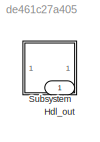
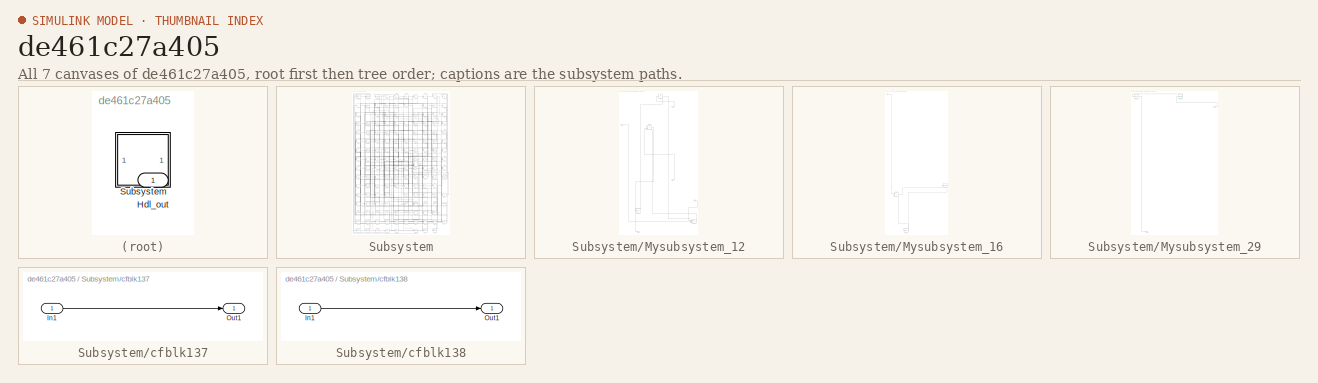
[diagram: thumbnail index - all 7 canvases of the model, root first then tree order]
MODEL slx_de461c27a405
KIND model
CONFIG AbsTol = auto
CONFIG EnableMultiTasking = off
CONFIG FixedStep = auto
CONFIG MaxStep = auto
CONFIG MinStep = auto
CONFIG RelTol = 1e-3
CONFIG SampleTimeConstraint = Unconstrained
CONFIG SolverName = VariableStepAuto
CONFIG StartTime = 0.0
CONFIG StopTime = 10.0
BLOCK [Outport] Hdl_out
  OutDataTypeStr = uint8
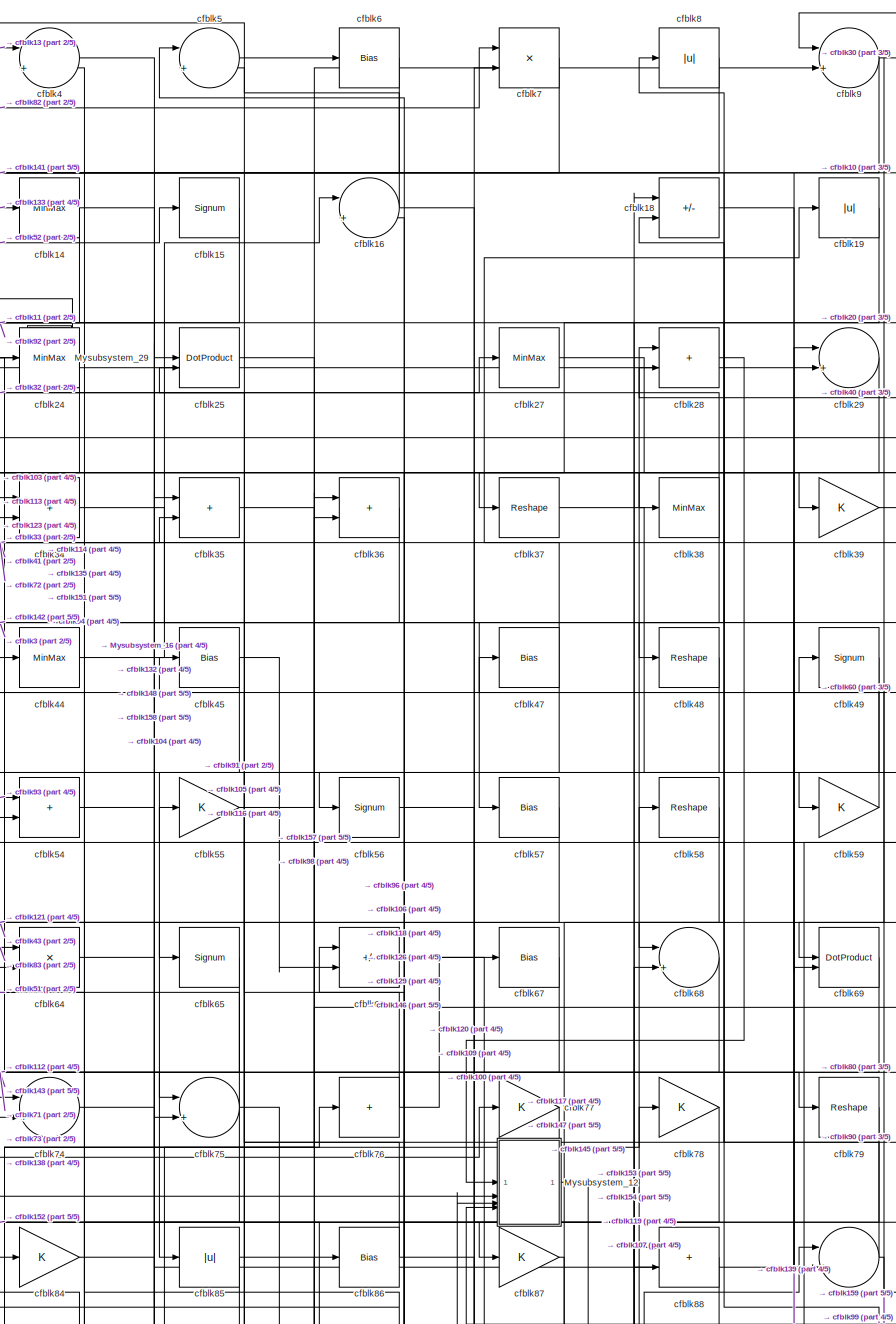
[diagram: Subsystem - part 1/5, top center region]
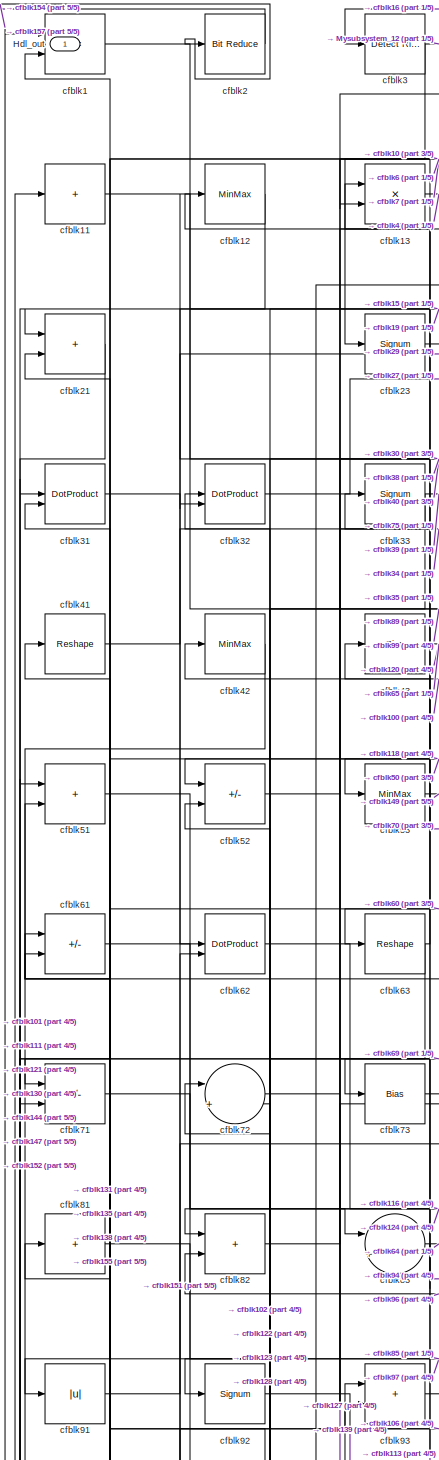
[diagram: Subsystem - part 2/5, top left region]
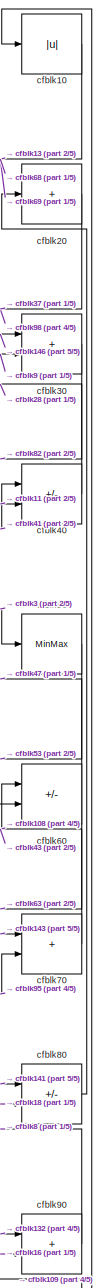
[diagram: Subsystem - part 3/5, top right region]
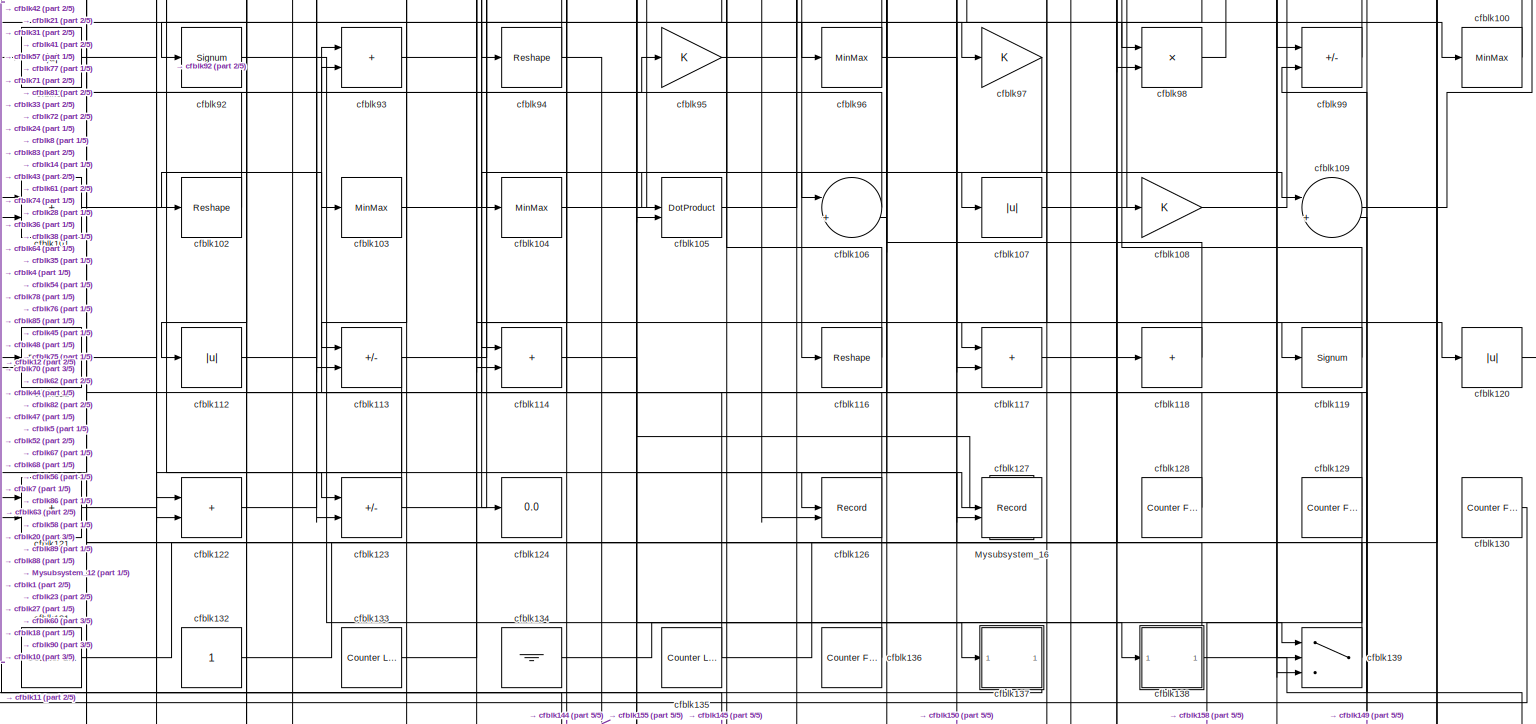
[diagram: Subsystem - part 4/5, full width, bottom band]
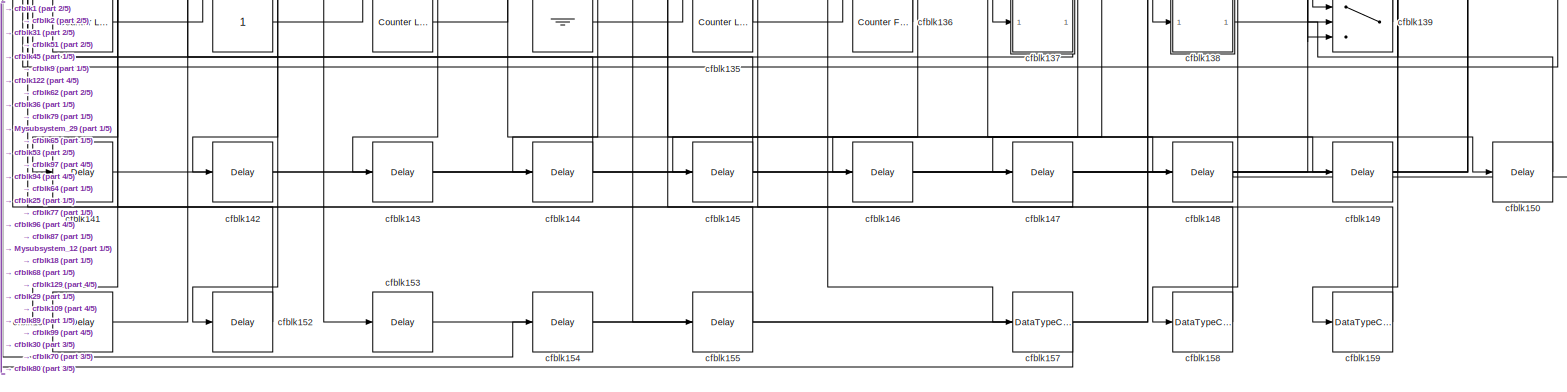
[diagram: Subsystem - part 5/5, full width, bottom band]
BLOCK [SubSystem] Subsystem
BLOCK [Outport] Subsystem/Hdl_out
  OutDataTypeStr = uint8
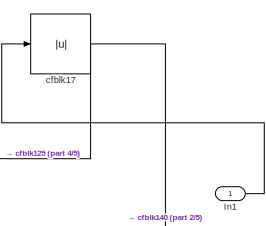
[diagram: Subsystem/Mysubsystem_12 - part 1/5, top center region]
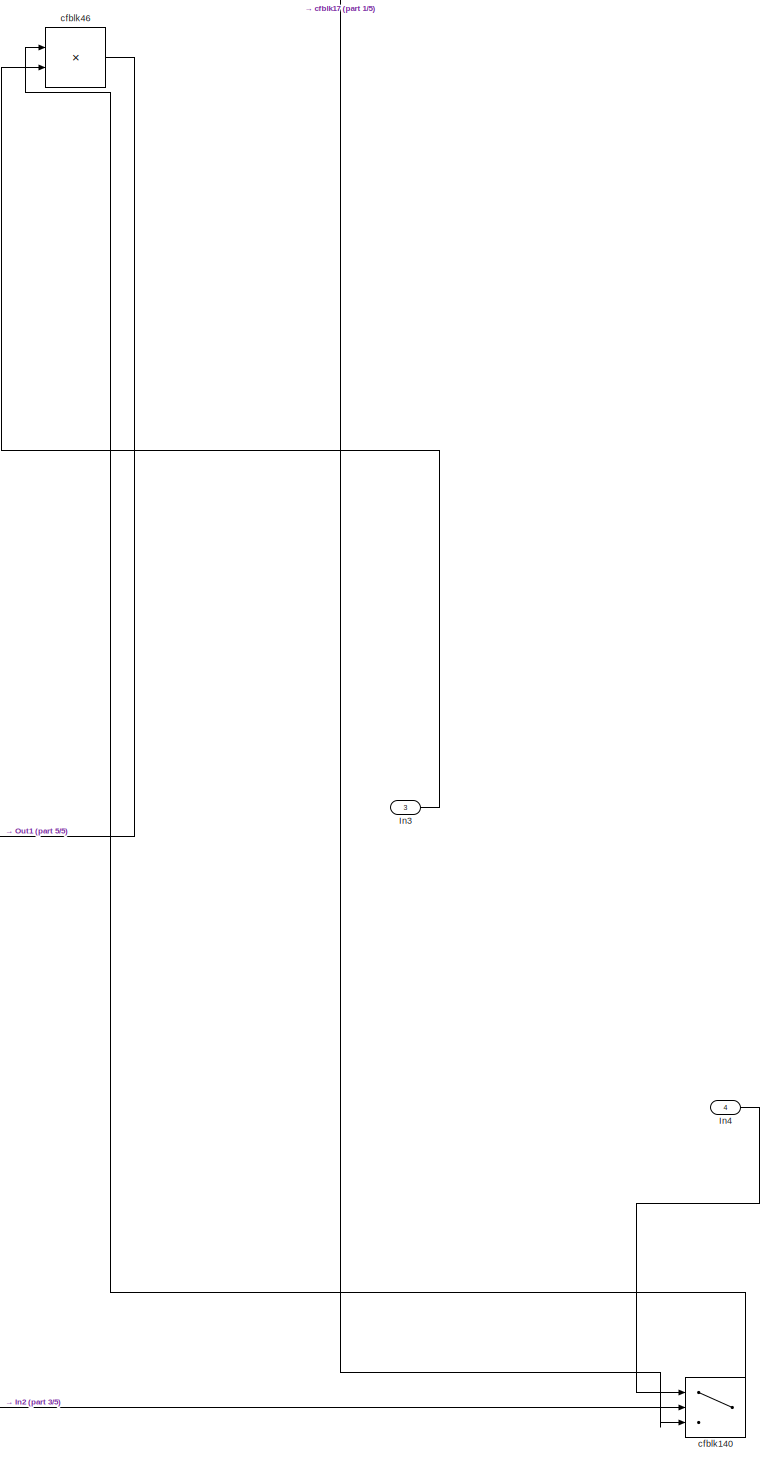
[diagram: Subsystem/Mysubsystem_12 - part 2/5, central region]
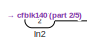
[diagram: Subsystem/Mysubsystem_12 - part 3/5, top left region]
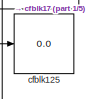
[diagram: Subsystem/Mysubsystem_12 - part 4/5, bottom left region]
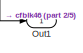
[diagram: Subsystem/Mysubsystem_12 - part 5/5, bottom left region]
BLOCK [SubSystem] Subsystem/Mysubsystem_12
  RTWFcnName = Mysubsystem_12
  RTWFcnNameOpts = User specified
  RTWFileNameOpts = Use function name
  RTWSystemCode = Reusable function
  TreatAsAtomicUnit = on
BLOCK [Inport] Subsystem/Mysubsystem_12/In1
BLOCK [Inport] Subsystem/Mysubsystem_12/In2
  Port = 2
BLOCK [Inport] Subsystem/Mysubsystem_12/In3
  Port = 3
BLOCK [Inport] Subsystem/Mysubsystem_12/In4
  Port = 4
BLOCK [Outport] Subsystem/Mysubsystem_12/Out1
BLOCK [Display] Subsystem/Mysubsystem_12/cfblk125
  Decimation = 1
BLOCK [Switch] Subsystem/Mysubsystem_12/cfblk140
  InputSameDT = off
  SaturateOnIntegerOverflow = off
BLOCK [Abs] Subsystem/Mysubsystem_12/cfblk17
  SaturateOnIntegerOverflow = off
BLOCK [Product] Subsystem/Mysubsystem_12/cfblk46
  Inputs = */
  RndMeth = Zero
  SaturateOnIntegerOverflow = on
BLOCK [SubSystem] Subsystem/Mysubsystem_16
  RTWFcnName = Mysubsystem_16
  RTWFcnNameOpts = User specified
  RTWFileNameOpts = Use function name
  RTWSystemCode = Reusable function
  TreatAsAtomicUnit = on
BLOCK [Inport] Subsystem/Mysubsystem_16/In1
BLOCK [Reshape] Subsystem/Mysubsystem_16/cfblk110
BLOCK [Sum] Subsystem/Mysubsystem_16/cfblk115
  IconShape = rectangular
  Inputs = +-
BLOCK [Delay] Subsystem/Mysubsystem_16/cfblk156
  InputPortMap = u0
  SampleTime = 1
BLOCK [SubSystem] Subsystem/Mysubsystem_29
  RTWFcnName = Mysubsystem_29
  RTWFcnNameOpts = User specified
  RTWFileNameOpts = Use function name
  RTWSystemCode = Reusable function
  TreatAsAtomicUnit = on
BLOCK [Inport] Subsystem/Mysubsystem_29/In1
BLOCK [Outport] Subsystem/Mysubsystem_29/Out1
BLOCK [Bias] Subsystem/Mysubsystem_29/cfblk22
  Bias = 0.0
  SaturateOnIntegerOverflow = off
BLOCK [Signum] Subsystem/Mysubsystem_29/cfblk26
BLOCK [RelationalOperator] Subsystem/cfblk1
  InputSameDT = off
  Operator = <=
  OutDataTypeStr = boolean
BLOCK [Abs] Subsystem/cfblk10
  OutDataTypeStr = uint8
  SaturateOnIntegerOverflow = off
BLOCK [MinMax] Subsystem/cfblk100
  OutDataTypeStr = uint8
BLOCK [Sum] Subsystem/cfblk101
  IconShape = rectangular
  OutDataTypeStr = uint8
BLOCK [Reshape] Subsystem/cfblk102
BLOCK [MinMax] Subsystem/cfblk103
  OutDataTypeStr = uint8
BLOCK [MinMax] Subsystem/cfblk104
  OutDataTypeStr = uint8
BLOCK [DotProduct] Subsystem/cfblk105
  OutDataTypeStr = uint8
BLOCK [Sum] Subsystem/cfblk106
  Inputs = |++
  OutDataTypeStr = uint8
BLOCK [Abs] Subsystem/cfblk107
  OutDataTypeStr = uint8
  SaturateOnIntegerOverflow = off
BLOCK [Gain] Subsystem/cfblk108
  OutDataTypeStr = uint8
BLOCK [Sum] Subsystem/cfblk109
  Inputs = |++
  OutDataTypeStr = uint8
BLOCK [Sum] Subsystem/cfblk11
  IconShape = rectangular
  Inputs = +
  OutDataTypeStr = uint8
BLOCK [DotProduct] Subsystem/cfblk111
  OutDataTypeStr = uint8
BLOCK [Abs] Subsystem/cfblk112
  OutDataTypeStr = uint8
  SaturateOnIntegerOverflow = off
BLOCK [Sum] Subsystem/cfblk113
  IconShape = rectangular
  Inputs = +-
  OutDataTypeStr = uint8
BLOCK [Sum] Subsystem/cfblk114
  IconShape = rectangular
  OutDataTypeStr = uint8
BLOCK [Reshape] Subsystem/cfblk116
BLOCK [Sum] Subsystem/cfblk117
  IconShape = rectangular
  OutDataTypeStr = uint8
BLOCK [Sum] Subsystem/cfblk118
  IconShape = rectangular
  Inputs = +
  OutDataTypeStr = uint8
BLOCK [Signum] Subsystem/cfblk119
BLOCK [MinMax] Subsystem/cfblk12
  OutDataTypeStr = uint8
BLOCK [Abs] Subsystem/cfblk120
  OutDataTypeStr = uint8
  SaturateOnIntegerOverflow = off
BLOCK [Sum] Subsystem/cfblk121
  IconShape = rectangular
  OutDataTypeStr = uint8
BLOCK [Sum] Subsystem/cfblk122
  IconShape = rectangular
  OutDataTypeStr = uint8
BLOCK [Sum] Subsystem/cfblk123
  IconShape = rectangular
  Inputs = +-
  OutDataTypeStr = uint8
BLOCK [Display] Subsystem/cfblk124
  Decimation = 1
BLOCK [Record] Subsystem/cfblk126
  CompatibilityTag = XY
  FileSettingsInternal = {"entries":[{"content":{"excelSettings":{"content":{},"type":"Streamout.ExcelSettings"}},"type":"Streamout.FileSettingStorage","uuid":""}],"packageUris":["http:\/\/schema.mathworks.com\/mf0\/streamout_blocks\/R2020a"],"version":"1.0"}
  Layout = [1 1]
  SignalsInternal = {"entries":[{"content":{"signals":[{"content":{"blockPath":[],"dimensions":[1],"domain":"","lineColor":"#a2142f","plots":[1],"port":1,"signalID":11687,"signalName":"cfblk67"},"type":"RecordBlkView.Signal","uuid":""},{"content":{"blockPath":[],"dimensions":[1],"domain":"","lineColor":"#139fff","plots":[1],"port":2,"signalID":11690,"signalName":"cfblk75"},"type":"RecordBlkView.Signal","uuid":""}]},"...<+142ch>
  VisualizationBindings = {"xyplotplugin":{"info":[{"series":[{"bindingParametersList":[{"parameter":"X-Axis","signalID":11687,"signalName":"cfblk67"},{"parameter":"Y-Axis","signalID":11690,"signalName":"cfblk75"}],"seriesID":39533}],"subplotID":1}]}}
  st = -1
BLOCK [Record] Subsystem/cfblk127
  CompatibilityTag = XY
  FileSettingsInternal = {"entries":[{"content":{"excelSettings":{"content":{},"type":"Streamout.ExcelSettings"}},"type":"Streamout.FileSettingStorage","uuid":""}],"packageUris":["http:\/\/schema.mathworks.com\/mf0\/streamout_blocks\/R2020a"],"version":"1.0"}
  Layout = [1 1]
  SignalsInternal = {"entries":[{"content":{"signals":[{"content":{"blockPath":[],"dimensions":[1],"domain":"","lineColor":"#a2142f","plots":[1],"port":1,"signalID":11679,"signalName":"cfblk114"},"type":"RecordBlkView.Signal","uuid":""},{"content":{"blockPath":[],"dimensions":[1],"domain":"","lineColor":"#139fff","plots":[1],"port":2,"signalID":11682,"signalName":"cfblk72"},"type":"RecordBlkView.Signal","uuid":""}]},...<+143ch>
  VisualizationBindings = {"xyplotplugin":{"info":[{"series":[{"bindingParametersList":[{"parameter":"X-Axis","signalID":11679,"signalName":"cfblk114"},{"parameter":"Y-Axis","signalID":11682,"signalName":"cfblk72"}],"seriesID":15942}],"subplotID":1}]}}
  st = -1
BLOCK [Reference] Subsystem/cfblk128  REF=hdlsllib/Sources/Counter
Free-Running
  SourceBlock = hdlsllib/Sources/Counter\nFree-Running
  SourceType = Counter Free-Running
BLOCK [Reference] Subsystem/cfblk129  REF=hdlsllib/Sources/Counter
Free-Running
  SourceBlock = hdlsllib/Sources/Counter\nFree-Running
  SourceType = Counter Free-Running
BLOCK [Product] Subsystem/cfblk13
  Inputs = */
  OutDataTypeStr = uint8
  RndMeth = Zero
  SaturateOnIntegerOverflow = on
BLOCK [Reference] Subsystem/cfblk130  REF=hdlsllib/Sources/Counter
Free-Running
  SourceBlock = hdlsllib/Sources/Counter\nFree-Running
  SourceType = Counter Free-Running
BLOCK [Reference] Subsystem/cfblk131  REF=hdlsllib/Sources/Counter
Limited
  SourceBlock = hdlsllib/Sources/Counter\nLimited
  SourceType = Counter Limited
BLOCK [Constant] Subsystem/cfblk132
  OutDataTypeStr = uint8
  SampleTime = -1
BLOCK [Reference] Subsystem/cfblk133  REF=hdlsllib/Sources/Counter
Limited
  SourceBlock = hdlsllib/Sources/Counter\nLimited
  SourceType = Counter Limited
BLOCK [Ground] Subsystem/cfblk134
BLOCK [Reference] Subsystem/cfblk135  REF=hdlsllib/Sources/Counter
Limited
  SourceBlock = hdlsllib/Sources/Counter\nLimited
  SourceType = Counter Limited
BLOCK [Reference] Subsystem/cfblk136  REF=hdlsllib/Sources/Counter
Free-Running
  SourceBlock = hdlsllib/Sources/Counter\nFree-Running
  SourceType = Counter Free-Running
BLOCK [SubSystem] Subsystem/cfblk137
  LibrarySourceBlock = hdlsllib/Ports &\nSubsystems/Subsystem
BLOCK [Inport] Subsystem/cfblk137/In1
BLOCK [Outport] Subsystem/cfblk137/Out1
BLOCK [SubSystem] Subsystem/cfblk138
  LibrarySourceBlock = hdlsllib/Ports &\nSubsystems/Subsystem
BLOCK [Inport] Subsystem/cfblk138/In1
BLOCK [Outport] Subsystem/cfblk138/Out1
BLOCK [Switch] Subsystem/cfblk139
  InputSameDT = off
  OutDataTypeStr = uint8
  SaturateOnIntegerOverflow = off
BLOCK [MinMax] Subsystem/cfblk14
  OutDataTypeStr = uint8
BLOCK [Delay] Subsystem/cfblk141
  InputPortMap = u0
  SampleTime = 1
BLOCK [Delay] Subsystem/cfblk142
  InputPortMap = u0
  SampleTime = 1
BLOCK [Delay] Subsystem/cfblk143
  InputPortMap = u0
  SampleTime = 1
BLOCK [Delay] Subsystem/cfblk144
  InputPortMap = u0
  SampleTime = 1
BLOCK [Delay] Subsystem/cfblk145
  InputPortMap = u0
  SampleTime = 1
BLOCK [Delay] Subsystem/cfblk146
  InputPortMap = u0
  SampleTime = 1
BLOCK [Delay] Subsystem/cfblk147
  InputPortMap = u0
  SampleTime = 1
BLOCK [Delay] Subsystem/cfblk148
  InputPortMap = u0
  SampleTime = 1
BLOCK [Delay] Subsystem/cfblk149
  InputPortMap = u0
  SampleTime = 1
BLOCK [Signum] Subsystem/cfblk15
BLOCK [Delay] Subsystem/cfblk150
  InputPortMap = u0
  SampleTime = 1
BLOCK [Delay] Subsystem/cfblk151
  InputPortMap = u0
  SampleTime = 1
BLOCK [Delay] Subsystem/cfblk152
  InputPortMap = u0
  SampleTime = 1
BLOCK [Delay] Subsystem/cfblk153
  InputPortMap = u0
  SampleTime = 1
BLOCK [Delay] Subsystem/cfblk154
  InputPortMap = u0
  SampleTime = 1
BLOCK [Delay] Subsystem/cfblk155
  InputPortMap = u0
  SampleTime = 1
BLOCK [DataTypeConversion] Subsystem/cfblk157
  OutDataTypeStr = uint8
  RndMeth = Floor
  SaturateOnIntegerOverflow = off
BLOCK [DataTypeConversion] Subsystem/cfblk158
  OutDataTypeStr = uint8
  RndMeth = Floor
  SaturateOnIntegerOverflow = off
BLOCK [DataTypeConversion] Subsystem/cfblk159
  OutDataTypeStr = uint8
  RndMeth = Floor
  SaturateOnIntegerOverflow = off
BLOCK [Sum] Subsystem/cfblk16
  Inputs = |++
  OutDataTypeStr = uint8
BLOCK [Sum] Subsystem/cfblk18
  IconShape = rectangular
  Inputs = +-
  OutDataTypeStr = uint8
BLOCK [Abs] Subsystem/cfblk19
  OutDataTypeStr = uint8
  SaturateOnIntegerOverflow = off
BLOCK [Reference] Subsystem/cfblk2  REF=hdlsllib/Logic and Bit
Operations/Bit Reduce
  SourceBlock = hdlsllib/Logic and Bit\nOperations/Bit Reduce
  SourceType = Bit Reduce
BLOCK [Sum] Subsystem/cfblk20
  IconShape = rectangular
  Inputs = +
  OutDataTypeStr = uint8
BLOCK [Sum] Subsystem/cfblk21
  IconShape = rectangular
  OutDataTypeStr = uint8
BLOCK [Signum] Subsystem/cfblk23
BLOCK [MinMax] Subsystem/cfblk24
  OutDataTypeStr = uint8
BLOCK [DotProduct] Subsystem/cfblk25
  OutDataTypeStr = uint8
BLOCK [MinMax] Subsystem/cfblk27
  OutDataTypeStr = uint8
BLOCK [Sum] Subsystem/cfblk28
  IconShape = rectangular
  OutDataTypeStr = uint8
BLOCK [Sum] Subsystem/cfblk29
  Inputs = |++
  OutDataTypeStr = uint8
BLOCK [Reference] Subsystem/cfblk3  REF=hdlsllib/Logic and Bit
Operations/Detect Rise
Positive
  SourceBlock = hdlsllib/Logic and Bit\nOperations/Detect Rise\nPositive
  SourceType = Detect Rise Positive
BLOCK [Sum] Subsystem/cfblk30
  IconShape = rectangular
  OutDataTypeStr = uint8
BLOCK [DotProduct] Subsystem/cfblk31
  OutDataTypeStr = uint8
BLOCK [DotProduct] Subsystem/cfblk32
  OutDataTypeStr = uint8
BLOCK [Signum] Subsystem/cfblk33
BLOCK [Sum] Subsystem/cfblk34
  IconShape = rectangular
  OutDataTypeStr = uint8
BLOCK [Sum] Subsystem/cfblk35
  IconShape = rectangular
  OutDataTypeStr = uint8
BLOCK [Sum] Subsystem/cfblk36
  IconShape = rectangular
  OutDataTypeStr = uint8
BLOCK [Reshape] Subsystem/cfblk37
BLOCK [MinMax] Subsystem/cfblk38
  OutDataTypeStr = uint8
BLOCK [Gain] Subsystem/cfblk39
  OutDataTypeStr = uint8
BLOCK [Sum] Subsystem/cfblk4
  Inputs = |++
  OutDataTypeStr = uint8
BLOCK [Sum] Subsystem/cfblk40
  IconShape = rectangular
  Inputs = +-
  OutDataTypeStr = uint8
BLOCK [Reshape] Subsystem/cfblk41
BLOCK [MinMax] Subsystem/cfblk42
  OutDataTypeStr = uint8
BLOCK [Bias] Subsystem/cfblk43
  Bias = 0.0
  SaturateOnIntegerOverflow = off
BLOCK [MinMax] Subsystem/cfblk44
  OutDataTypeStr = uint8
BLOCK [Bias] Subsystem/cfblk45
  Bias = 0.0
  SaturateOnIntegerOverflow = off
BLOCK [Bias] Subsystem/cfblk47
  Bias = 0.0
  SaturateOnIntegerOverflow = off
BLOCK [Reshape] Subsystem/cfblk48
BLOCK [Signum] Subsystem/cfblk49
BLOCK [Sum] Subsystem/cfblk5
  Inputs = |++
  OutDataTypeStr = uint8
BLOCK [MinMax] Subsystem/cfblk50
  OutDataTypeStr = uint8
BLOCK [Sum] Subsystem/cfblk51
  IconShape = rectangular
  OutDataTypeStr = uint8
BLOCK [Sum] Subsystem/cfblk52
  IconShape = rectangular
  Inputs = +-
  OutDataTypeStr = uint8
BLOCK [MinMax] Subsystem/cfblk53
  OutDataTypeStr = uint8
BLOCK [Sum] Subsystem/cfblk54
  IconShape = rectangular
  OutDataTypeStr = uint8
BLOCK [Gain] Subsystem/cfblk55
  OutDataTypeStr = uint8
BLOCK [Signum] Subsystem/cfblk56
BLOCK [Bias] Subsystem/cfblk57
  Bias = 0.0
  SaturateOnIntegerOverflow = off
BLOCK [Reshape] Subsystem/cfblk58
BLOCK [Gain] Subsystem/cfblk59
  OutDataTypeStr = uint8
BLOCK [Bias] Subsystem/cfblk6
  Bias = 0.0
  SaturateOnIntegerOverflow = off
BLOCK [Sum] Subsystem/cfblk60
  IconShape = rectangular
  Inputs = +-
  OutDataTypeStr = uint8
BLOCK [Sum] Subsystem/cfblk61
  IconShape = rectangular
  Inputs = +-
  OutDataTypeStr = uint8
BLOCK [DotProduct] Subsystem/cfblk62
  OutDataTypeStr = uint8
BLOCK [Reshape] Subsystem/cfblk63
BLOCK [Product] Subsystem/cfblk64
  Inputs = */
  OutDataTypeStr = uint8
  RndMeth = Zero
  SaturateOnIntegerOverflow = on
BLOCK [Signum] Subsystem/cfblk65
BLOCK [Sum] Subsystem/cfblk66
  IconShape = rectangular
  Inputs = +-
  OutDataTypeStr = uint8
BLOCK [Bias] Subsystem/cfblk67
  Bias = 0.0
  SaturateOnIntegerOverflow = off
BLOCK [Sum] Subsystem/cfblk68
  Inputs = |++
  OutDataTypeStr = uint8
BLOCK [DotProduct] Subsystem/cfblk69
  OutDataTypeStr = uint8
BLOCK [Product] Subsystem/cfblk7
  Inputs = */
  OutDataTypeStr = uint8
  RndMeth = Zero
  SaturateOnIntegerOverflow = on
BLOCK [Sum] Subsystem/cfblk70
  IconShape = rectangular
  OutDataTypeStr = uint8
BLOCK [Sum] Subsystem/cfblk71
  IconShape = rectangular
  Inputs = +-
  OutDataTypeStr = uint8
BLOCK [Sum] Subsystem/cfblk72
  Inputs = |++
  OutDataTypeStr = uint8
BLOCK [Bias] Subsystem/cfblk73
  Bias = 0.0
  SaturateOnIntegerOverflow = off
BLOCK [Sum] Subsystem/cfblk74
  Inputs = |++
  OutDataTypeStr = uint8
BLOCK [Sum] Subsystem/cfblk75
  Inputs = |++
  OutDataTypeStr = uint8
BLOCK [Sum] Subsystem/cfblk76
  IconShape = rectangular
  Inputs = +
  OutDataTypeStr = uint8
BLOCK [Gain] Subsystem/cfblk77
  OutDataTypeStr = uint8
BLOCK [Gain] Subsystem/cfblk78
  OutDataTypeStr = uint8
BLOCK [Reshape] Subsystem/cfblk79
BLOCK [Abs] Subsystem/cfblk8
  OutDataTypeStr = uint8
  SaturateOnIntegerOverflow = off
BLOCK [Sum] Subsystem/cfblk80
  IconShape = rectangular
  Inputs = +-
  OutDataTypeStr = uint8
BLOCK [Sum] Subsystem/cfblk81
  IconShape = rectangular
  Inputs = +
  OutDataTypeStr = uint8
BLOCK [Sum] Subsystem/cfblk82
  IconShape = rectangular
  OutDataTypeStr = uint8
BLOCK [Sum] Subsystem/cfblk83
  Inputs = |++
  OutDataTypeStr = uint8
BLOCK [Gain] Subsystem/cfblk84
  OutDataTypeStr = uint8
BLOCK [Abs] Subsystem/cfblk85
  OutDataTypeStr = uint8
  SaturateOnIntegerOverflow = off
BLOCK [Bias] Subsystem/cfblk86
  Bias = 0.0
  SaturateOnIntegerOverflow = off
BLOCK [Gain] Subsystem/cfblk87
  OutDataTypeStr = uint8
BLOCK [Sum] Subsystem/cfblk88
  IconShape = rectangular
  OutDataTypeStr = uint8
BLOCK [Sum] Subsystem/cfblk89
  Inputs = |++
  OutDataTypeStr = uint8
BLOCK [Sum] Subsystem/cfblk9
  Inputs = |++
  OutDataTypeStr = uint8
BLOCK [Sum] Subsystem/cfblk90
  IconShape = rectangular
  OutDataTypeStr = uint8
BLOCK [Abs] Subsystem/cfblk91
  OutDataTypeStr = uint8
  SaturateOnIntegerOverflow = off
BLOCK [Signum] Subsystem/cfblk92
BLOCK [Sum] Subsystem/cfblk93
  IconShape = rectangular
  OutDataTypeStr = uint8
BLOCK [Reshape] Subsystem/cfblk94
BLOCK [Gain] Subsystem/cfblk95
  OutDataTypeStr = uint8
BLOCK [MinMax] Subsystem/cfblk96
  OutDataTypeStr = uint8
BLOCK [Gain] Subsystem/cfblk97
  OutDataTypeStr = uint8
BLOCK [Product] Subsystem/cfblk98
  Inputs = */
  OutDataTypeStr = uint8
  RndMeth = Zero
  SaturateOnIntegerOverflow = on
BLOCK [Sum] Subsystem/cfblk99
  IconShape = rectangular
  Inputs = +-
  OutDataTypeStr = uint8
LINE Subsystem/Mysubsystem_12/In1:1 -> Subsystem/Mysubsystem_12/cfblk17:1
LINE Subsystem/Mysubsystem_12/In2:1 -> Subsystem/Mysubsystem_12/cfblk140:2
LINE Subsystem/Mysubsystem_12/In3:1 -> Subsystem/Mysubsystem_12/cfblk46:2
LINE Subsystem/Mysubsystem_12/In4:1 -> Subsystem/Mysubsystem_12/cfblk140:1
LINE Subsystem/Mysubsystem_12/cfblk140:1 -> Subsystem/Mysubsystem_12/cfblk46:1
NET Subsystem/Mysubsystem_12/cfblk17:1 -> Subsystem/Mysubsystem_12/cfblk125:1, Subsystem/Mysubsystem_12/cfblk140:3
LINE Subsystem/Mysubsystem_12/cfblk46:1 -> Subsystem/Mysubsystem_12/Out1:1
LINE Subsystem/Mysubsystem_12:1 -> Subsystem/cfblk145:1
LINE Subsystem/Mysubsystem_16/In1:1 -> Subsystem/Mysubsystem_16/cfblk115:1
LINE Subsystem/Mysubsystem_16/cfblk110:1 -> Subsystem/Mysubsystem_16/cfblk156:1
LINE Subsystem/Mysubsystem_16/cfblk115:1 -> Subsystem/Mysubsystem_16/cfblk110:1
LINE Subsystem/Mysubsystem_16/cfblk156:1 -> Subsystem/Mysubsystem_16/cfblk115:2
LINE Subsystem/Mysubsystem_29/In1:1 -> Subsystem/Mysubsystem_29/cfblk26:1
LINE Subsystem/Mysubsystem_29/cfblk22:1 -> Subsystem/Mysubsystem_29/Out1:1
LINE Subsystem/Mysubsystem_29/cfblk26:1 -> Subsystem/Mysubsystem_29/cfblk22:1
LINE Subsystem/Mysubsystem_29:1 -> Subsystem/cfblk153:1
LINE Subsystem/cfblk100:1 -> Subsystem/cfblk42:1
LINE Subsystem/cfblk101:1 -> Subsystem/cfblk103:1
LINE Subsystem/cfblk102:1 -> Subsystem/cfblk81:1
LINE Subsystem/cfblk103:1 -> Subsystem/cfblk36:1
LINE Subsystem/cfblk104:1 -> Subsystem/cfblk76:1
LINE Subsystem/cfblk105:1 -> Subsystem/cfblk86:1
LINE Subsystem/cfblk106:1 -> Subsystem/cfblk31:2
LINE Subsystem/cfblk107:1 -> Subsystem/cfblk89:1
LINE Subsystem/cfblk108:1 -> Subsystem/cfblk60:1
LINE Subsystem/cfblk109:1 -> Subsystem/cfblk10:1
NET Subsystem/cfblk10:1 -> Subsystem/cfblk13:2, Subsystem/cfblk68:1, Subsystem/cfblk69:2
LINE Subsystem/cfblk111:1 -> Subsystem/cfblk93:2
LINE Subsystem/cfblk112:1 -> Subsystem/cfblk74:2
NET Subsystem/cfblk113:1 -> Subsystem/cfblk122:2, Subsystem/cfblk36:2
NET Subsystem/cfblk114:1 -> Subsystem/cfblk127:1, Subsystem/cfblk137:1
LINE Subsystem/cfblk116:1 -> Subsystem/cfblk45:1
LINE Subsystem/cfblk117:1 -> Subsystem/cfblk118:1
NET Subsystem/cfblk118:1 -> Subsystem/cfblk52:1, Subsystem/cfblk5:1
LINE Subsystem/cfblk119:1 -> Subsystem/cfblk78:1
NET Subsystem/cfblk11:1 -> Subsystem/cfblk38:1, Subsystem/cfblk40:2, Subsystem/cfblk75:2
LINE Subsystem/cfblk120:1 -> Subsystem/Mysubsystem_12:4
LINE Subsystem/cfblk121:1 -> Subsystem/cfblk77:1
NET Subsystem/cfblk122:1 -> Subsystem/cfblk52:2, Subsystem/cfblk95:1
NET Subsystem/cfblk123:1 -> Subsystem/cfblk28:1, Subsystem/cfblk72:2
LINE Subsystem/cfblk128:1 -> Subsystem/cfblk72:1
NET Subsystem/cfblk129:1 -> Subsystem/cfblk158:1, Subsystem/cfblk66:1
NET Subsystem/cfblk12:1 -> Subsystem/cfblk111:2, Subsystem/cfblk21:1
LINE Subsystem/cfblk130:1 -> Subsystem/cfblk11:1
NET Subsystem/cfblk131:1 -> Subsystem/cfblk108:1, Subsystem/cfblk61:1
NET Subsystem/cfblk132:1 -> Subsystem/cfblk35:1, Subsystem/cfblk60:2, Subsystem/cfblk7:2, Subsystem/cfblk90:1
LINE Subsystem/cfblk133:1 -> Subsystem/cfblk14:1
LINE Subsystem/cfblk134:1 -> Subsystem/cfblk138:1
NET Subsystem/cfblk135:1 -> Subsystem/cfblk61:2, Subsystem/cfblk64:2, Subsystem/cfblk88:1
LINE Subsystem/cfblk136:1 -> Subsystem/cfblk93:1
LINE Subsystem/cfblk137/In1:1 -> Subsystem/cfblk137/Out1:1
LINE Subsystem/cfblk137:1 -> Subsystem/cfblk111:1
LINE Subsystem/cfblk138/In1:1 -> Subsystem/cfblk138/Out1:1
NET Subsystem/cfblk138:1 -> Subsystem/cfblk21:2, Subsystem/cfblk74:1
LINE Subsystem/cfblk139:1 -> Subsystem/cfblk41:1
LINE Subsystem/cfblk13:1 -> Subsystem/cfblk4:1
LINE Subsystem/cfblk141:1 -> Subsystem/cfblk80:1
LINE Subsystem/cfblk142:1 -> Subsystem/cfblk29:1
LINE Subsystem/cfblk143:1 -> Subsystem/cfblk70:1
LINE Subsystem/cfblk144:1 -> Subsystem/cfblk51:1
LINE Subsystem/cfblk145:1 -> Subsystem/cfblk122:1
LINE Subsystem/cfblk146:1 -> Subsystem/cfblk30:1
LINE Subsystem/cfblk147:1 -> Subsystem/cfblk1:1
LINE Subsystem/cfblk148:1 -> Subsystem/cfblk9:1
LINE Subsystem/cfblk149:1 -> Subsystem/cfblk99:2
NET Subsystem/cfblk14:1 -> Subsystem/cfblk54:2, Subsystem/cfblk88:2
LINE Subsystem/cfblk150:1 -> Subsystem/cfblk109:2
LINE Subsystem/cfblk151:1 -> Subsystem/cfblk62:2
LINE Subsystem/cfblk152:1 -> Subsystem/cfblk31:1
LINE Subsystem/cfblk153:1 -> Subsystem/cfblk18:1
LINE Subsystem/cfblk154:1 -> Subsystem/cfblk68:2
LINE Subsystem/cfblk155:1 -> Subsystem/cfblk1:2
LINE Subsystem/cfblk157:1 -> Subsystem/cfblk2:1
LINE Subsystem/cfblk158:1 -> Subsystem/cfblk25:1
LINE Subsystem/cfblk159:1 -> Subsystem/cfblk25:2
LINE Subsystem/cfblk15:1 -> Subsystem/cfblk92:1
NET Subsystem/cfblk16:1 -> Subsystem/cfblk3:1, Subsystem/cfblk90:2
LINE Subsystem/cfblk18:1 -> Subsystem/cfblk80:2
NET Subsystem/cfblk19:1 -> Subsystem/cfblk32:2, Subsystem/cfblk48:1
LINE Subsystem/cfblk1:1 -> Subsystem/cfblk99:1
NET Subsystem/cfblk20:1 -> Subsystem/cfblk37:1, Subsystem/cfblk98:2
LINE Subsystem/cfblk21:1 -> Subsystem/cfblk101:2
LINE Subsystem/cfblk23:1 -> Subsystem/cfblk139:2
LINE Subsystem/cfblk24:1 -> Subsystem/cfblk123:2
LINE Subsystem/cfblk25:1 -> Subsystem/cfblk157:1
LINE Subsystem/cfblk27:1 -> Subsystem/cfblk139:3
LINE Subsystem/cfblk28:1 -> Subsystem/Mysubsystem_12:1
LINE Subsystem/cfblk29:1 -> Subsystem/cfblk56:1
LINE Subsystem/cfblk2:1 -> Subsystem/cfblk154:1
LINE Subsystem/cfblk30:1 -> Subsystem/cfblk82:1
LINE Subsystem/cfblk31:1 -> Subsystem/cfblk62:1
LINE Subsystem/cfblk32:1 -> Subsystem/cfblk27:1
NET Subsystem/cfblk33:1 -> Subsystem/cfblk102:1, Subsystem/cfblk39:1
LINE Subsystem/cfblk34:1 -> Subsystem/cfblk57:1
LINE Subsystem/cfblk35:1 -> Subsystem/cfblk79:1
LINE Subsystem/cfblk36:1 -> Subsystem/cfblk142:1
LINE Subsystem/cfblk37:1 -> Subsystem/cfblk59:1
NET Subsystem/cfblk38:1 -> Subsystem/cfblk114:1, Subsystem/cfblk4:2
LINE Subsystem/cfblk39:1 -> Subsystem/Mysubsystem_29:1
NET Subsystem/cfblk3:1 -> Subsystem/Mysubsystem_12:2, Subsystem/cfblk23:1, Subsystem/cfblk50:1
LINE Subsystem/cfblk40:1 -> Subsystem/cfblk28:2
NET Subsystem/cfblk41:1 -> Subsystem/cfblk34:1, Subsystem/cfblk40:1
LINE Subsystem/cfblk42:1 -> Subsystem/cfblk101:1
NET Subsystem/cfblk43:1 -> Subsystem/cfblk120:1, Subsystem/cfblk65:1
LINE Subsystem/cfblk44:1 -> Subsystem/cfblk16:1
NET Subsystem/cfblk45:1 -> Subsystem/cfblk114:2, Subsystem/cfblk151:1, Subsystem/cfblk66:2, Subsystem/cfblk94:1
NET Subsystem/cfblk47:1 -> Subsystem/cfblk106:1, Subsystem/cfblk19:1
LINE Subsystem/cfblk48:1 -> Subsystem/cfblk105:1
LINE Subsystem/cfblk49:1 -> Subsystem/cfblk85:1
LINE Subsystem/cfblk4:1 -> Subsystem/Mysubsystem_16:1
LINE Subsystem/cfblk50:1 -> Subsystem/cfblk53:1
LINE Subsystem/cfblk51:1 -> Subsystem/cfblk83:1
LINE Subsystem/cfblk52:1 -> Subsystem/cfblk15:1
LINE Subsystem/cfblk53:1 -> Subsystem/cfblk149:1
NET Subsystem/cfblk54:1 -> Subsystem/cfblk107:1, Subsystem/cfblk24:1
LINE Subsystem/cfblk55:1 -> Subsystem/cfblk9:2
LINE Subsystem/cfblk56:1 -> Subsystem/cfblk119:1
LINE Subsystem/cfblk57:1 -> Subsystem/cfblk121:1
LINE Subsystem/cfblk58:1 -> Subsystem/cfblk117:1
LINE Subsystem/cfblk59:1 -> Subsystem/cfblk49:1
LINE Subsystem/cfblk5:1 -> Subsystem/cfblk6:1
NET Subsystem/cfblk60:1 -> Subsystem/cfblk47:1, Subsystem/cfblk63:1
LINE Subsystem/cfblk61:1 -> Subsystem/cfblk124:1
LINE Subsystem/cfblk62:1 -> Subsystem/cfblk116:1
NET Subsystem/cfblk63:1 -> Subsystem/cfblk121:2, Subsystem/cfblk13:1
LINE Subsystem/cfblk64:1 -> Subsystem/cfblk148:1
NET Subsystem/cfblk65:1 -> Subsystem/cfblk143:1, Subsystem/cfblk71:2
LINE Subsystem/cfblk66:1 -> Subsystem/cfblk100:1
LINE Subsystem/cfblk67:1 -> Subsystem/cfblk126:1
NET Subsystem/cfblk68:1 -> Subsystem/cfblk106:2, Subsystem/cfblk112:1
LINE Subsystem/cfblk69:1 -> Subsystem/cfblk83:2
NET Subsystem/cfblk6:1 -> Subsystem/cfblk34:2, Subsystem/cfblk71:1
LINE Subsystem/cfblk70:1 -> Subsystem/cfblk43:1
LINE Subsystem/cfblk71:1 -> Subsystem/cfblk97:1
NET Subsystem/cfblk72:1 -> Subsystem/cfblk127:2, Subsystem/cfblk32:1, Subsystem/cfblk35:2
LINE Subsystem/cfblk73:1 -> Subsystem/cfblk75:1
LINE Subsystem/cfblk74:1 -> Subsystem/cfblk96:1
NET Subsystem/cfblk75:1 -> Subsystem/cfblk104:1, Subsystem/cfblk126:2, Subsystem/cfblk51:2
NET Subsystem/cfblk76:1 -> Subsystem/cfblk16:2, Subsystem/cfblk5:2, Subsystem/cfblk67:1
NET Subsystem/cfblk77:1 -> Subsystem/cfblk146:1, Subsystem/cfblk87:1
NET Subsystem/cfblk78:1 -> Subsystem/cfblk105:2, Subsystem/cfblk84:1
LINE Subsystem/cfblk79:1 -> Subsystem/cfblk152:1
LINE Subsystem/cfblk7:1 -> Subsystem/cfblk73:1
LINE Subsystem/cfblk80:1 -> Subsystem/cfblk20:1
LINE Subsystem/cfblk81:1 -> Subsystem/cfblk123:1
LINE Subsystem/cfblk82:1 -> Subsystem/cfblk7:1
NET Subsystem/cfblk83:1 -> Subsystem/cfblk113:1, Subsystem/cfblk64:1
LINE Subsystem/cfblk84:1 -> Subsystem/cfblk89:2
NET Subsystem/cfblk85:1 -> Subsystem/cfblk91:1, Subsystem/cfblk98:1
NET Subsystem/cfblk86:1 -> Subsystem/cfblk109:1, Subsystem/cfblk55:1
LINE Subsystem/cfblk87:1 -> Subsystem/cfblk147:1
LINE Subsystem/cfblk88:1 -> Subsystem/cfblk117:2
NET Subsystem/cfblk89:1 -> Subsystem/cfblk159:1, Subsystem/cfblk33:1, Subsystem/cfblk58:1
LINE Subsystem/cfblk8:1 -> Subsystem/cfblk113:2
LINE Subsystem/cfblk90:1 -> Subsystem/cfblk8:1
LINE Subsystem/cfblk91:1 -> Subsystem/cfblk29:2
LINE Subsystem/cfblk92:1 -> Subsystem/cfblk139:1
LINE Subsystem/cfblk93:1 -> Subsystem/cfblk54:1
NET Subsystem/cfblk94:1 -> Subsystem/cfblk12:1, Subsystem/cfblk155:1
LINE Subsystem/cfblk95:1 -> Subsystem/cfblk70:2
NET Subsystem/cfblk96:1 -> Subsystem/cfblk150:1, Subsystem/cfblk44:1, Subsystem/cfblk82:2
LINE Subsystem/cfblk97:1 -> Subsystem/cfblk144:1
LINE Subsystem/cfblk98:1 -> Subsystem/Mysubsystem_12:3
LINE Subsystem/cfblk99:1 -> Subsystem/cfblk18:2
NET Subsystem/cfblk9:1 -> Subsystem/cfblk141:1, Subsystem/cfblk30:2, Subsystem/cfblk69:1
note: NET lines group one-source signal fan-out (src -> all destinations, sorted); 1:1 wires keep LINE
